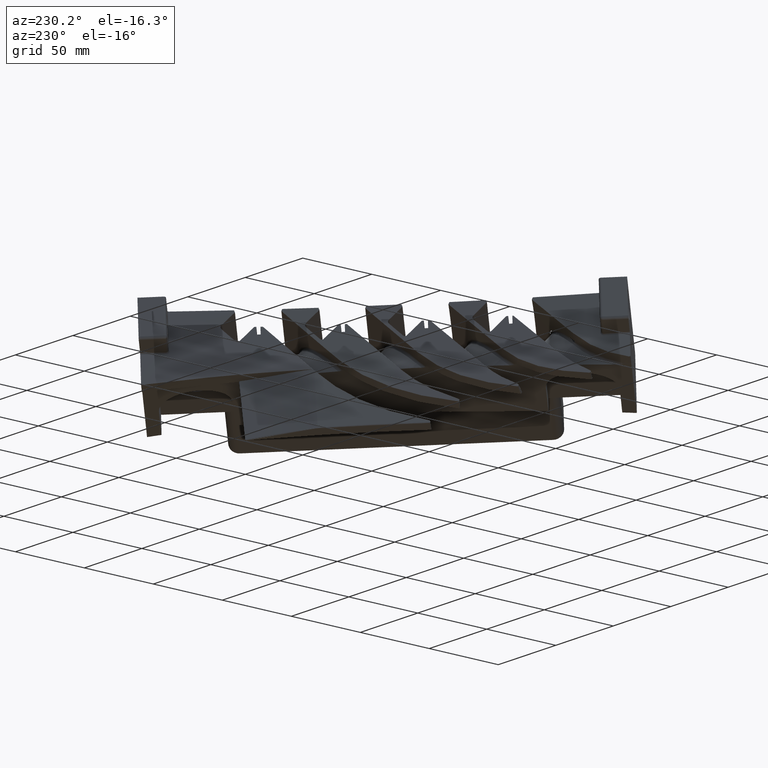
[diagram: clean part render]
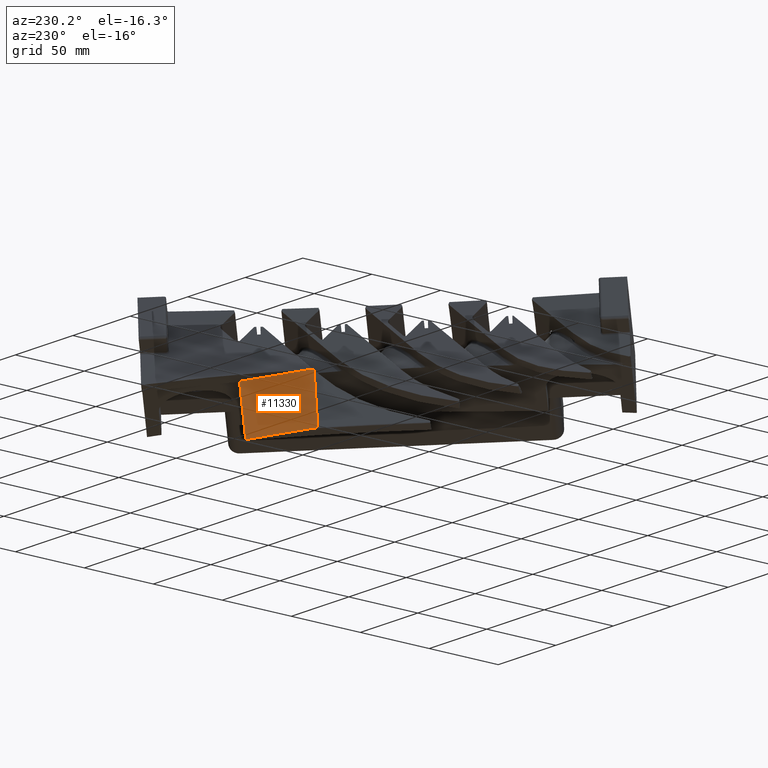
[diagram: same view with one face highlighted and labeled with its STEP entity id]
A machine part, auxiliary view. The second image highlights one B-rep face of the part: STEP entity #11330.
In plain terms, the highlighted face is a freeform B-spline surface patch.
Its self-contained STEP definition (entity closure, byte-faithful):
#842=DIRECTION('',(-1.522856968057E-1,5.056758232227E-2,-9.870420387028E-1));
#843=VECTOR('',#842,3.814552872286E-1);
#844=CARTESIAN_POINT('',(8.989117168352E1,-2.740858881975E1,-6.778053795069E0));
#845=LINE('',#844,#843);
#846=DIRECTION('',(1.523305024635E-1,-5.051603853497E-2,9.870377641559E-1));
#847=VECTOR('',#846,3.023658458629E-2);
#848=CARTESIAN_POINT('',(8.989117168352E1,-2.740858881975E1,-6.778053795069E0));
#849=LINE('',#848,#847);
#850=DIRECTION('',(1.523188388607E-1,-5.052961846238E-2,9.870388690351E-1));
#851=VECTOR('',#850,5.852652964155E-1);
#852=CARTESIAN_POINT('',(8.989577763764E1,-2.741011625222E1,-6.748209144223E0));
#853=LINE('',#852,#851);
#854=DIRECTION('',(-1.523011968316E-1,5.055014947417E-2,-9.870405401157E-1));
#855=VECTOR('',#854,3.859273989300E-1);
#856=CARTESIAN_POINT('',(9.004370177276E1,-2.745919817205E1,-5.789603559678E0));
#857=LINE('',#856,#855);
#1385=CARTESIAN_POINT('',(9.006685794482E1,-2.743990539464E1,
-5.761141676702E0));
#1719=CARTESIAN_POINT('',(9.006685794482E1,-2.743990539464E1,
-5.761141676702E0));
#1720=CARTESIAN_POINT('',(9.006273595994E1,-2.744315207824E1,
-5.765904774186E0));
#1721=CARTESIAN_POINT('',(9.005588265699E1,-2.744893094719E1,
-5.775537316445E0));
#1722=CARTESIAN_POINT('',(9.004755970208E1,-2.745584168336E1,
-5.784920506832E0));
#1723=CARTESIAN_POINT('',(9.004370177276E1,-2.745919817205E1,
-5.789603559678E0));
#3496=CARTESIAN_POINT('',(8.983308149930E1,-2.738929954811E1,
-7.154566199449E0));
#3497=CARTESIAN_POINT('',(8.984598119746E1,-2.737421719687E1,
-7.155791346680E0));
#3498=CARTESIAN_POINT('',(8.987426150038E1,-2.734541406991E1,
-7.158723785927E0));
#3499=CARTESIAN_POINT('',(8.991939683984E1,-2.730633834248E1,
-7.163830335146E0));
#3500=CARTESIAN_POINT('',(8.996644875515E1,-2.727007315604E1,
-7.169451134922E0));
#3501=CARTESIAN_POINT('',(9.001417897474E1,-2.723564877291E1,
-7.175340715470E0));
#3502=CARTESIAN_POINT('',(9.006256418413E1,-2.720178208275E1,
-7.181433112509E0));
#3503=CARTESIAN_POINT('',(9.011108870539E1,-2.716786124407E1,
-7.187619736737E0));
#3504=CARTESIAN_POINT('',(9.015936165135E1,-2.713391606815E1,
-7.193840471897E0));
#3505=CARTESIAN_POINT('',(9.020728122072E1,-2.710011613891E1,
-7.200085951341E0));
#3506=CARTESIAN_POINT('',(9.025476139974E1,-2.706646058796E1,
-7.206341132348E0));
#3507=CARTESIAN_POINT('',(9.030181618441E1,-2.703290987483E1,
-7.212605264120E0));
#3508=CARTESIAN_POINT('',(9.034896175909E1,-2.699906937663E1,
-7.218945969115E0));
#3509=CARTESIAN_POINT('',(9.039671013615E1,-2.696453561787E1,
-7.225433466824E0));
#3510=CARTESIAN_POINT('',(9.044541965231E1,-2.692900358214E1,
-7.232119662754E0));
#3511=CARTESIAN_POINT('',(9.049582703946E1,-2.689187466780E1,
-7.239110877860E0));
#3512=CARTESIAN_POINT('',(9.054974050351E1,-2.685171443719E1,
-7.246669221734E0));
#3513=CARTESIAN_POINT('',(9.060904664898E1,-2.680694052680E1,
-7.255080462644E0));
#3514=CARTESIAN_POINT('',(9.067566248625E1,-2.675580908124E1,
-7.264651052056E0));
#3515=CARTESIAN_POINT('',(9.074969501382E1,-2.669780072460E1,
-7.275442728494E0));
#3516=CARTESIAN_POINT('',(9.083004333781E1,-2.663323644819E1,
-7.287343850966E0));
#3517=CARTESIAN_POINT('',(9.091605888671E1,-2.656201065656E1,
-7.300306559473E0));
#3518=CARTESIAN_POINT('',(9.100804582645E1,-2.648304812630E1,
-7.314431792566E0));
#3519=CARTESIAN_POINT('',(9.107335837291E1,-2.642457748229E1,
-7.324669455293E0));
#3520=CARTESIAN_POINT('',(9.110706744149E1,-2.639357095703E1,
-7.330016112851E0));
#3522=DIRECTION('',(1.764773687719E-1,-2.198574659880E-2,9.840591269115E-1));
#3523=VECTOR('',#3522,1.413405210716E0);
#3524=CARTESIAN_POINT('',(9.110706744149E1,-2.639357095703E1,
-7.330016112851E0));
#3525=LINE('',#3524,#3523);
#3526=CARTESIAN_POINT('',(9.006685794482E1,-2.743990539464E1,
-5.761141676702E0));
#3527=CARTESIAN_POINT('',(9.009063279195E1,-2.741489974933E1,
-5.763560624430E0));
#3528=CARTESIAN_POINT('',(9.013854740134E1,-2.737207180111E1,
-5.768858968343E0));
#3529=CARTESIAN_POINT('',(9.022067566989E1,-2.730997842176E1,
-5.778755425219E0));
#3530=CARTESIAN_POINT('',(9.030111230962E1,-2.725307586046E1,
-5.788860113823E0));
#3531=CARTESIAN_POINT('',(9.038492284546E1,-2.719332939013E1,
-5.799596493182E0));
#3532=CARTESIAN_POINT('',(9.049937692852E1,-2.711125595512E1,
-5.814536752369E0));
#3533=CARTESIAN_POINT('',(9.063800589031E1,-2.701034351496E1,
-5.833164817250E0));
#3534=CARTESIAN_POINT('',(9.080167346482E1,-2.688769352075E1,
-5.855930934918E0));
#3535=CARTESIAN_POINT('',(9.101733450673E1,-2.672007869311E1,
-5.886905075348E0));
#3536=CARTESIAN_POINT('',(9.120369560067E1,-2.656428851772E1,
-5.915052151461E0));
#3537=CARTESIAN_POINT('',(9.133291553348E1,-2.644651042799E1,
-5.935398928780E0));
#3538=CARTESIAN_POINT('',(9.135650147408E1,-2.642464572583E1,
-5.939141815222E0));
#3598=CARTESIAN_POINT('',(9.110706744149E1,-2.639357095703E1,
-7.330016112851E0));
#5375=VERTEX_POINT('',#1385);
#5377=CARTESIAN_POINT('',(9.004370177276E1,-2.745919817205E1,
-5.789603559678E0));
#5378=CARTESIAN_POINT('',(8.998492456802E1,-2.743968948435E1,
-6.170529547963E0));
#5379=VERTEX_POINT('',#5377);
#5380=VERTEX_POINT('',#5378);
#5381=CARTESIAN_POINT('',(8.989117168352E1,-2.740858881975E1,
-6.778053795069E0));
#5382=CARTESIAN_POINT('',(8.989577763764E1,-2.741011625222E1,
-6.748209144223E0));
#5383=VERTEX_POINT('',#5381);
#5384=VERTEX_POINT('',#5382);
#5386=VERTEX_POINT('',#3538);
#5660=VERTEX_POINT('',#3598);
#5662=VERTEX_POINT('',#3496);
#11261=CARTESIAN_POINT('',(9.001063193171E1,-2.755887024399E1,
-5.625376767761E0));
#11262=CARTESIAN_POINT('',(8.992696160834E1,-2.752939296407E1,
-6.177072521358E0));
#11263=CARTESIAN_POINT('',(8.984329128497E1,-2.749991568415E1,
-6.728768274955E0));
#11264=CARTESIAN_POINT('',(8.975962096160E1,-2.747043840423E1,
-7.280464028552E0));
#11265=CARTESIAN_POINT('',(9.002254234619E1,-2.752845518586E1,
-5.625704005200E0));
#11266=CARTESIAN_POINT('',(8.993829595618E1,-2.749936692287E1,
-6.177333088202E0));
#11267=CARTESIAN_POINT('',(8.985404956617E1,-2.747027865987E1,
-6.728962171204E0));
#11268=CARTESIAN_POINT('',(8.976980317617E1,-2.744119039688E1,
-7.280591254206E0));
#11269=CARTESIAN_POINT('',(9.006252339093E1,-2.746639701359E1,
-5.628690703595E0));
#11270=CARTESIAN_POINT('',(8.997726729E1,-2.743827200118E1,-6.180215539485E0));
#11271=CARTESIAN_POINT('',(8.989201118907E1,-2.741014698877E1,
-6.731740375375E0));
#11272=CARTESIAN_POINT('',(8.980675508814E1,-2.738202197637E1,
-7.283265211265E0));
#11273=CARTESIAN_POINT('',(9.014889200104E1,-2.738583053636E1,
-5.638019003785E0));
#11274=CARTESIAN_POINT('',(9.006253641863E1,-2.735914869657E1,
-6.189444017004E0));
#11275=CARTESIAN_POINT('',(8.997618083622E1,-2.733246685678E1,
-6.740869030222E0));
#11276=CARTESIAN_POINT('',(8.988982525381E1,-2.730578501699E1,
-7.292294043440E0));
#11277=CARTESIAN_POINT('',(9.024126608182E1,-2.731592968172E1,
-5.649146395142E0));
#11278=CARTESIAN_POINT('',(9.015394435092E1,-2.729045710205E1,
-6.200475981024E0));
#11279=CARTESIAN_POINT('',(9.006662262002E1,-2.726498452238E1,
-6.751805566906E0));
#11280=CARTESIAN_POINT('',(8.997930088913E1,-2.723951194272E1,
-7.303135152787E0));
#11281=CARTESIAN_POINT('',(9.032180715302E1,-2.725886326092E1,
-5.659260826604E0));
#11282=CARTESIAN_POINT('',(9.023371510636E1,-2.723428633678E1,
-6.210508511819E0));
#11283=CARTESIAN_POINT('',(9.014562305969E1,-2.720970941265E1,
-6.761756197033E0));
#11284=CARTESIAN_POINT('',(9.005753101303E1,-2.718513248852E1,
-7.313003882248E0));
#11285=CARTESIAN_POINT('',(9.040582592148E1,-2.719888919830E1,
-5.670020482695E0));
#11286=CARTESIAN_POINT('',(9.031693202721E1,-2.717522924728E1,
-6.221179565722E0));
#11287=CARTESIAN_POINT('',(9.022803813295E1,-2.715156929626E1,
-6.772338648749E0));
#11288=CARTESIAN_POINT('',(9.013914423869E1,-2.712790934524E1,
-7.323497731776E0));
#11289=CARTESIAN_POINT('',(9.052053272624E1,-2.711652128145E1,
-5.684989367062E0));
#11290=CARTESIAN_POINT('',(9.043053432399E1,-2.709413192071E1,
-6.236023026117E0));
#11291=CARTESIAN_POINT('',(9.034053592174E1,-2.707174255997E1,
-6.787056685172E0));
#11292=CARTESIAN_POINT('',(9.025053751949E1,-2.704935319922E1,
-7.338090344227E0));
#11293=CARTESIAN_POINT('',(9.065948354100E1,-2.701524007123E1,
-5.703655722270E0));
#11294=CARTESIAN_POINT('',(9.056813074293E1,-2.699441038294E1,
-6.254528325543E0));
#11295=CARTESIAN_POINT('',(9.047677794487E1,-2.697358069465E1,
-6.805400928815E0));
#11296=CARTESIAN_POINT('',(9.038542514681E1,-2.695275100635E1,
-7.356273532088E0));
#11297=CARTESIAN_POINT('',(9.082353404544E1,-2.689214691868E1,
-5.726469967114E0));
#11298=CARTESIAN_POINT('',(9.073054830379E1,-2.687320474180E1,
-6.277137346409E0));
#11299=CARTESIAN_POINT('',(9.063756256215E1,-2.685426256493E1,
-6.827804725703E0));
#11300=CARTESIAN_POINT('',(9.054457682050E1,-2.683532038805E1,
-7.378472104998E0));
#11301=CARTESIAN_POINT('',(9.103971348868E1,-2.672393086411E1,
-5.757512677096E0));
#11302=CARTESIAN_POINT('',(9.094452413736E1,-2.670754515835E1,
-6.307888570615E0));
#11303=CARTESIAN_POINT('',(9.084933478605E1,-2.669115945258E1,
-6.858264464135E0));
#11304=CARTESIAN_POINT('',(9.075414543473E1,-2.667477374682E1,
-7.408640357654E0));
#11305=CARTESIAN_POINT('',(9.125230105249E1,-2.654603907185E1,
-5.789616569357E0));
#11306=CARTESIAN_POINT('',(9.115484406455E1,-2.653230331848E1,
-6.339668290244E0));
#11307=CARTESIAN_POINT('',(9.105738707662E1,-2.651856756510E1,
-6.889720011130E0));
#11308=CARTESIAN_POINT('',(9.095993008868E1,-2.650483181173E1,
-7.439771732017E0));
#11309=CARTESIAN_POINT('',(9.140565255095E1,-2.640384320822E1,
-5.813958373131E0));
#11310=CARTESIAN_POINT('',(9.130645882423E1,-2.639216260008E1,
-6.363742578046E0));
#11311=CARTESIAN_POINT('',(9.120726509752E1,-2.638048199195E1,
-6.913526782961E0));
#11312=CARTESIAN_POINT('',(9.110807137080E1,-2.636880138381E1,
-7.463310987875E0));
#11313=CARTESIAN_POINT('',(9.145321016467E1,-2.635808745900E1,
-5.821630204890E0));
#11314=CARTESIAN_POINT('',(9.135346631970E1,-2.634706130400E1,
-6.371327717306E0));
#11315=CARTESIAN_POINT('',(9.125372247473E1,-2.633603514899E1,
-6.921025229721E0));
#11316=CARTESIAN_POINT('',(9.115397862976E1,-2.632500899398E1,
-7.470722742136E0));
#11317=B_SPLINE_SURFACE_WITH_KNOTS('',3,3,((#11261,#11262,#11263,#11264),
(#11265,#11266,#11267,#11268),(#11269,#11270,#11271,#11272),(#11273,#11274,
#11275,#11276),(#11277,#11278,#11279,#11280),(#11281,#11282,#11283,#11284),(
#11285,#11286,#11287,#11288),(#11289,#11290,#11291,#11292),(#11293,#11294,
#11295,#11296),(#11297,#11298,#11299,#11300),(#11301,#11302,#11303,#11304),(
#11305,#11306,#11307,#11308),(#11309,#11310,#11311,#11312),(#11313,#11314,
#11315,#11316)),.UNSPECIFIED.,.F.,.F.,.F.,(4,1,1,1,1,1,1,1,1,1,1,4),(4,4),(
-7.429618417480E-2,0.E0,7.68E-2,1.16736E-1,1.6E-1,1.99936E-1,2.432E-1,
3.333333333333E-1,4.101333333333E-1,4.933333333333E-1,6.666666666667E-1,
7.464685990173E-1),(-8.290866227793E-2,9.750574306205E-1),.UNSPECIFIED.);
#11319=ORIENTED_EDGE('',*,*,#11318,.T.);
#11321=ORIENTED_EDGE('',*,*,#11320,.T.);
#11322=ORIENTED_EDGE('',*,*,#11251,.F.);
#11323=ORIENTED_EDGE('',*,*,#8172,.T.);
#11324=ORIENTED_EDGE('',*,*,#7136,.T.);
#11325=ORIENTED_EDGE('',*,*,#7134,.F.);
#11326=ORIENTED_EDGE('',*,*,#7132,.F.);
#11327=ORIENTED_EDGE('',*,*,#7130,.T.);
#11328=EDGE_LOOP('',(#11319,#11321,#11322,#11323,#11324,#11325,#11326,#11327));
#11329=FACE_OUTER_BOUND('',#11328,.F.);
#11330=ADVANCED_FACE('',(#11329),#11317,.T.);
#1724=B_SPLINE_CURVE_WITH_KNOTS('',3,(#1719,#1720,#1721,#1722,#1723),
.UNSPECIFIED.,.F.,.F.,(4,1,4),(0.E0,5.E-1,1.E0),.UNSPECIFIED.);
#3521=B_SPLINE_CURVE_WITH_KNOTS('',3,(#3496,#3497,#3498,#3499,#3500,#3501,#3502,
#3503,#3504,#3505,#3506,#3507,#3508,#3509,#3510,#3511,#3512,#3513,#3514,#3515,
#3516,#3517,#3518,#3519,#3520),.UNSPECIFIED.,.F.,.F.,(4,1,1,1,1,1,1,1,1,1,1,1,1,
1,1,1,1,1,1,1,1,1,4),(0.E0,4.545454545455E-2,9.090909090909E-2,
1.363636363636E-1,1.818181818182E-1,2.272727272727E-1,2.727272727273E-1,
3.181818181818E-1,3.636363636364E-1,4.090909090909E-1,4.545454545455E-1,5.E-1,
5.454545454545E-1,5.909090909091E-1,6.363636363636E-1,6.818181818182E-1,
7.272727272727E-1,7.727272727273E-1,8.181818181818E-1,8.636363636364E-1,
9.090909090909E-1,9.545454545455E-1,1.E0),.UNSPECIFIED.);
#3539=B_SPLINE_CURVE_WITH_KNOTS('',3,(#3526,#3527,#3528,#3529,#3530,#3531,#3532,
#3533,#3534,#3535,#3536,#3537,#3538),.UNSPECIFIED.,.F.,.F.,(4,1,1,1,1,1,1,1,1,1,
4),(0.E0,8.702511001134E-2,1.449987129396E-1,2.078034494452E-1,
2.657770523735E-1,3.285817888791E-1,4.594249899325E-1,5.709126878715E-1,
6.916910273054E-1,9.433125677927E-1,1.E0),.UNSPECIFIED.);
#7130=EDGE_CURVE('',#5383,#5662,#845,.T.);
#7132=EDGE_CURVE('',#5383,#5384,#849,.T.);
#7134=EDGE_CURVE('',#5384,#5380,#853,.T.);
#7136=EDGE_CURVE('',#5379,#5380,#857,.T.);
#8172=EDGE_CURVE('',#5375,#5379,#1724,.T.);
#11251=EDGE_CURVE('',#5375,#5386,#3539,.T.);
#11318=EDGE_CURVE('',#5662,#5660,#3521,.T.);
#11320=EDGE_CURVE('',#5660,#5386,#3525,.T.);